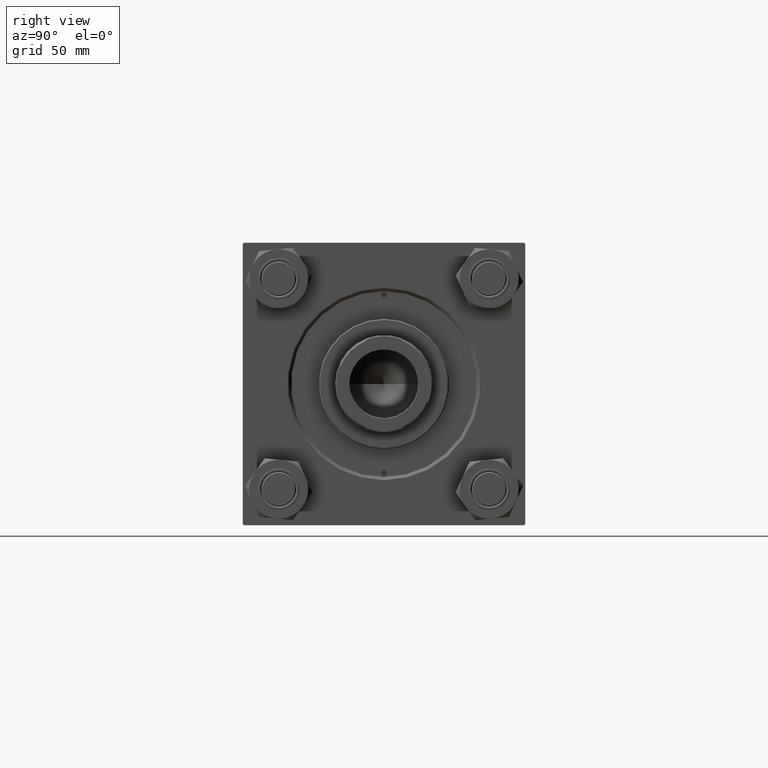
[diagram: clean part render]
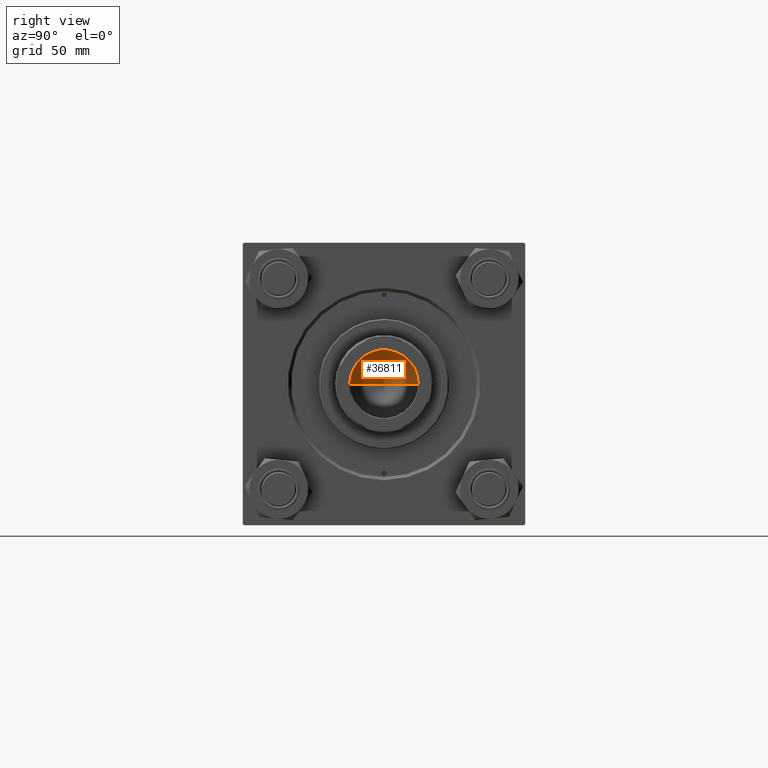
[diagram: same view with one face highlighted and labeled with its STEP entity id]
A machine part, right view. The second image highlights one B-rep face of the part: STEP entity #36811.
In plain terms, the highlighted conical surface has half-angle 59 deg.
Its self-contained STEP definition (entity closure, byte-faithful):
#415 = CARTESIAN_POINT ( 'NONE',  ( -15.74999999999998934, 1.928818708657080161E-15, 123.0000000000000142 ) ) ;
#937 = LINE ( 'NONE', #31472, #1786 ) ;
#1786 = VECTOR ( 'NONE', #23849, 1000.000000000000000 ) ;
#3019 = DIRECTION ( 'NONE',  ( -0.000000000000000000, -0.000000000000000000, 1.000000000000000000 ) ) ;
#3231 = DIRECTION ( 'NONE',  ( 1.000000000000000000, 0.000000000000000000, 0.000000000000000000 ) ) ;
#3588 = CARTESIAN_POINT ( 'NONE',  ( 15.74999999999998934, 0.000000000000000000, 123.0000000000000142 ) ) ;
#8249 = CARTESIAN_POINT ( 'NONE',  ( -1.584115414415908206E-14, 0.000000000000000000, 113.5364452503159214 ) ) ;
#8817 = ORIENTED_EDGE ( 'NONE', *, *, #16848, .T. ) ;
#9737 = DIRECTION ( 'NONE',  ( -0.8571673007021115565, 1.049727191138617710E-16, 0.5150380749100554878 ) ) ;
#10579 = EDGE_CURVE ( 'NONE', #16421, #21050, #13708, .T. ) ;
#13708 = CIRCLE ( 'NONE', #42160, 15.74999999999998934 ) ;
#16421 = VERTEX_POINT ( 'NONE', #415 ) ;
#16848 = EDGE_CURVE ( 'NONE', #26845, #16421, #41041, .T. ) ;
#17373 = CARTESIAN_POINT ( 'NONE',  ( -15.74999999999998934, 1.928818708657080161E-15, 123.0000000000000142 ) ) ;
#18542 = DIRECTION ( 'NONE',  ( 1.000000000000000000, 0.000000000000000000, 0.000000000000000000 ) ) ;
#21050 = VERTEX_POINT ( 'NONE', #3588 ) ;
#22356 = CARTESIAN_POINT ( 'NONE',  ( 0.000000000000000000, 0.000000000000000000, 123.0000000000000142 ) ) ;
#22574 = CARTESIAN_POINT ( 'NONE',  ( 0.000000000000000000, 0.000000000000000000, 123.0000000000000142 ) ) ;
#23109 = AXIS2_PLACEMENT_3D ( 'NONE', #22574, #26125, #3231 ) ;
#23849 = DIRECTION ( 'NONE',  ( 0.8571673007021115565, 0.000000000000000000, 0.5150380749100554878 ) ) ;
#26125 = DIRECTION ( 'NONE',  ( -0.000000000000000000, -0.000000000000000000, 1.000000000000000000 ) ) ;
#26845 = VERTEX_POINT ( 'NONE', #8249 ) ;
#27486 = EDGE_CURVE ( 'NONE', #26845, #21050, #937, .T. ) ;
#31472 = CARTESIAN_POINT ( 'NONE',  ( 15.74999999999998934, 0.000000000000000000, 123.0000000000000142 ) ) ;
#32429 = ORIENTED_EDGE ( 'NONE', *, *, #10579, .T. ) ;
#33104 = ORIENTED_EDGE ( 'NONE', *, *, #27486, .F. ) ;
#36811 = ADVANCED_FACE ( 'NONE', ( #49321 ), #42620, .F. ) ;
#41041 = LINE ( 'NONE', #17373, #45470 ) ;
#42160 = AXIS2_PLACEMENT_3D ( 'NONE', #22356, #3019, #18542 ) ;
#42620 = CONICAL_SURFACE ( 'NONE', #23109, 15.74999999999998934, 1.029744258676652979 ) ;
#45470 = VECTOR ( 'NONE', #9737, 1000.000000000000000 ) ;
#45902 = EDGE_LOOP ( 'NONE', ( #33104, #8817, #32429 ) ) ;
#49321 = FACE_OUTER_BOUND ( 'NONE', #45902, .T. ) ;